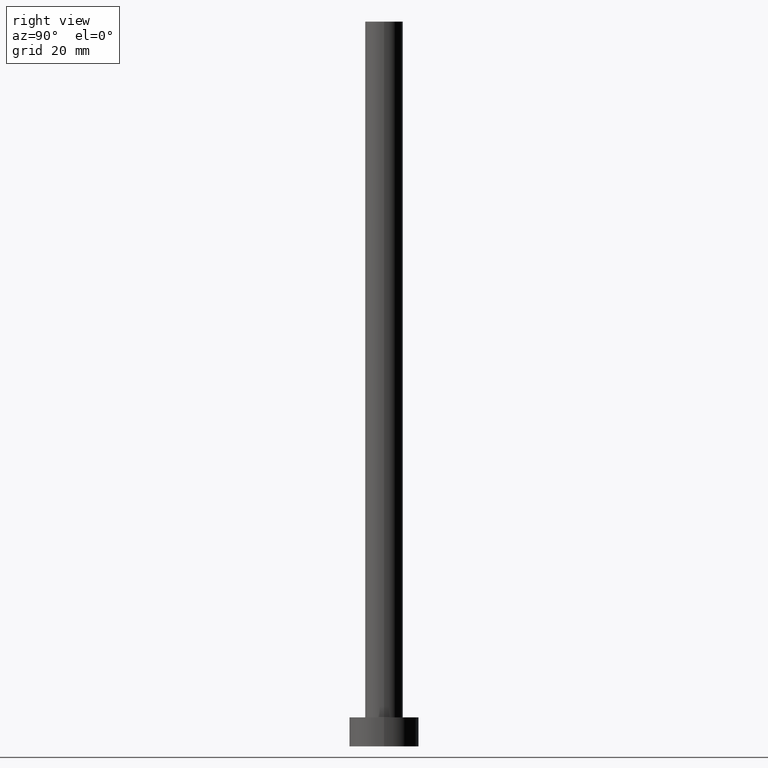
[diagram: clean part render]
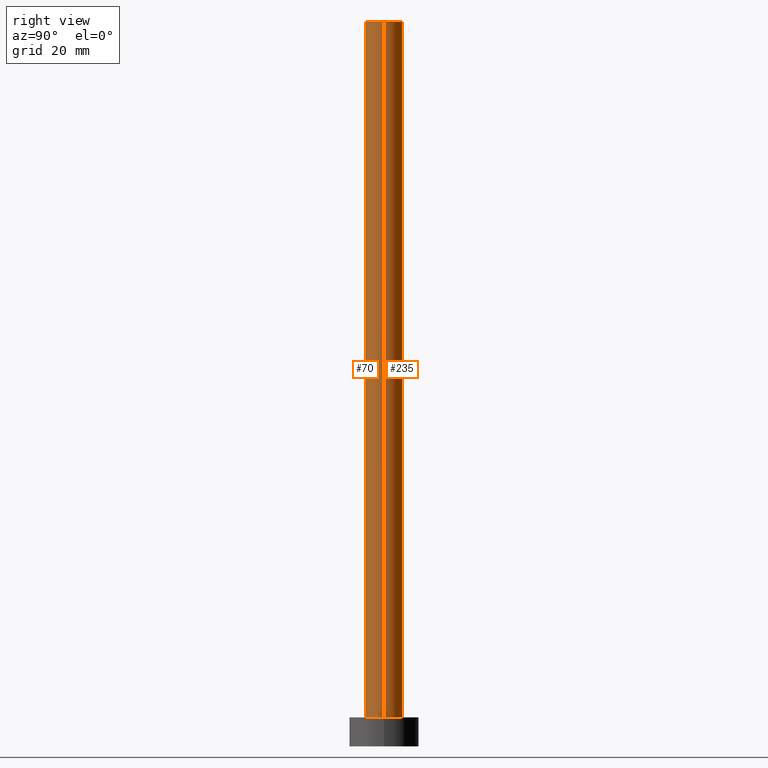
[diagram: same view with one multi-face feature highlighted, each face labeled with its STEP entity id]
A machine part, right view. The highlighted faces form ONE feature: a constant-radius fillet chain: 2 tangent blend faces with common blend radius 3.25 mm. The faces share edges in the B-rep.
Their STEP definitions:
[1] entity #70 (Cylinder):
#7 = VERTEX_POINT ( 'NONE', #46 ) ;
#9 = AXIS2_PLACEMENT_3D ( 'NONE', #105, #83, #219 ) ;
#27 = EDGE_LOOP ( 'NONE', ( #225, #113, #211, #193 ) ) ;
#30 = DIRECTION ( 'NONE',  ( -0.000000000000000000, -0.000000000000000000, -1.000000000000000000 ) ) ;
#31 = EDGE_CURVE ( 'NONE', #7, #53, #101, .T. ) ;
#44 = CYLINDRICAL_SURFACE ( 'NONE', #9, 3.250000000000000444 ) ;
#46 = CARTESIAN_POINT ( 'NONE',  ( -3.250000000000000444, 0.000000000000000000, 125.0000000000000000 ) ) ;
#49 = VERTEX_POINT ( 'NONE', #202 ) ;
#51 = DIRECTION ( 'NONE',  ( 1.000000000000000000, 0.000000000000000000, 0.000000000000000000 ) ) ;
#53 = VERTEX_POINT ( 'NONE', #127 ) ;
#55 = DIRECTION ( 'NONE',  ( 0.000000000000000000, 0.000000000000000000, 1.000000000000000000 ) ) ;
#70 = ADVANCED_FACE ( 'NONE', ( #181 ), #44, .T. ) ;
#73 = CIRCLE ( 'NONE', #138, 3.250000000000000444 ) ;
#75 = EDGE_CURVE ( 'NONE', #53, #90, #73, .T. ) ;
#79 = EDGE_CURVE ( 'NONE', #49, #90, #241, .T. ) ;
#83 = DIRECTION ( 'NONE',  ( -0.000000000000000000, -0.000000000000000000, -1.000000000000000000 ) ) ;
#85 = CIRCLE ( 'NONE', #93, 3.250000000000000444 ) ;
#90 = VERTEX_POINT ( 'NONE', #152 ) ;
#93 = AXIS2_PLACEMENT_3D ( 'NONE', #116, #55, #117 ) ;
#99 = CARTESIAN_POINT ( 'NONE',  ( 0.000000000000000000, 0.000000000000000000, 5.000000000000000000 ) ) ;
#101 = LINE ( 'NONE', #124, #183 ) ;
#105 = CARTESIAN_POINT ( 'NONE',  ( 0.000000000000000000, 0.000000000000000000, 125.0000000000000000 ) ) ;
#113 = ORIENTED_EDGE ( 'NONE', *, *, #203, .F. ) ;
#116 = CARTESIAN_POINT ( 'NONE',  ( 0.000000000000000000, 0.000000000000000000, 125.0000000000000000 ) ) ;
#117 = DIRECTION ( 'NONE',  ( 1.000000000000000000, 0.000000000000000000, 0.000000000000000000 ) ) ;
#124 = CARTESIAN_POINT ( 'NONE',  ( -3.250000000000000444, 0.000000000000000000, 125.0000000000000000 ) ) ;
#127 = CARTESIAN_POINT ( 'NONE',  ( -3.250000000000000444, 0.000000000000000000, 5.000000000000000000 ) ) ;
#138 = AXIS2_PLACEMENT_3D ( 'NONE', #99, #159, #51 ) ;
#139 = DIRECTION ( 'NONE',  ( -0.000000000000000000, -0.000000000000000000, -1.000000000000000000 ) ) ;
#152 = CARTESIAN_POINT ( 'NONE',  ( 3.250000000000000444, 3.980102097228898231E-16, 5.000000000000000000 ) ) ;
#159 = DIRECTION ( 'NONE',  ( 0.000000000000000000, 0.000000000000000000, 1.000000000000000000 ) ) ;
#164 = VECTOR ( 'NONE', #30, 1000.000000000000000 ) ;
#173 = CARTESIAN_POINT ( 'NONE',  ( 3.250000000000000444, 3.980102097228898231E-16, 125.0000000000000000 ) ) ;
#181 = FACE_OUTER_BOUND ( 'NONE', #27, .T. ) ;
#183 = VECTOR ( 'NONE', #139, 1000.000000000000000 ) ;
#193 = ORIENTED_EDGE ( 'NONE', *, *, #75, .T. ) ;
#202 = CARTESIAN_POINT ( 'NONE',  ( 3.250000000000000444, 3.980102097228898231E-16, 125.0000000000000000 ) ) ;
#203 = EDGE_CURVE ( 'NONE', #7, #49, #85, .T. ) ;
#211 = ORIENTED_EDGE ( 'NONE', *, *, #31, .T. ) ;
#219 = DIRECTION ( 'NONE',  ( -1.000000000000000000, 0.000000000000000000, 0.000000000000000000 ) ) ;
#225 = ORIENTED_EDGE ( 'NONE', *, *, #79, .F. ) ;
#241 = LINE ( 'NONE', #173, #164 ) ;
[2] entity #235 (Cylinder):
#7 = VERTEX_POINT ( 'NONE', #46 ) ;
#16 = CYLINDRICAL_SURFACE ( 'NONE', #196, 3.250000000000000444 ) ;
#30 = DIRECTION ( 'NONE',  ( -0.000000000000000000, -0.000000000000000000, -1.000000000000000000 ) ) ;
#31 = EDGE_CURVE ( 'NONE', #7, #53, #101, .T. ) ;
#33 = DIRECTION ( 'NONE',  ( -0.000000000000000000, -0.000000000000000000, -1.000000000000000000 ) ) ;
#38 = EDGE_CURVE ( 'NONE', #90, #53, #244, .T. ) ;
#40 = FACE_OUTER_BOUND ( 'NONE', #71, .T. ) ;
#46 = CARTESIAN_POINT ( 'NONE',  ( -3.250000000000000444, 0.000000000000000000, 125.0000000000000000 ) ) ;
#47 = DIRECTION ( 'NONE',  ( 1.000000000000000000, 0.000000000000000000, 0.000000000000000000 ) ) ;
#49 = VERTEX_POINT ( 'NONE', #202 ) ;
#53 = VERTEX_POINT ( 'NONE', #127 ) ;
#71 = EDGE_LOOP ( 'NONE', ( #151, #92, #89, #167 ) ) ;
#77 = AXIS2_PLACEMENT_3D ( 'NONE', #142, #143, #47 ) ;
#79 = EDGE_CURVE ( 'NONE', #49, #90, #241, .T. ) ;
#89 = ORIENTED_EDGE ( 'NONE', *, *, #38, .T. ) ;
#90 = VERTEX_POINT ( 'NONE', #152 ) ;
#92 = ORIENTED_EDGE ( 'NONE', *, *, #79, .T. ) ;
#101 = LINE ( 'NONE', #124, #183 ) ;
#124 = CARTESIAN_POINT ( 'NONE',  ( -3.250000000000000444, 0.000000000000000000, 125.0000000000000000 ) ) ;
#127 = CARTESIAN_POINT ( 'NONE',  ( -3.250000000000000444, 0.000000000000000000, 5.000000000000000000 ) ) ;
#134 = EDGE_CURVE ( 'NONE', #49, #7, #135, .T. ) ;
#135 = CIRCLE ( 'NONE', #230, 3.250000000000000444 ) ;
#139 = DIRECTION ( 'NONE',  ( -0.000000000000000000, -0.000000000000000000, -1.000000000000000000 ) ) ;
#142 = CARTESIAN_POINT ( 'NONE',  ( 0.000000000000000000, 0.000000000000000000, 5.000000000000000000 ) ) ;
#143 = DIRECTION ( 'NONE',  ( 0.000000000000000000, 0.000000000000000000, 1.000000000000000000 ) ) ;
#151 = ORIENTED_EDGE ( 'NONE', *, *, #134, .F. ) ;
#152 = CARTESIAN_POINT ( 'NONE',  ( 3.250000000000000444, 3.980102097228898231E-16, 5.000000000000000000 ) ) ;
#164 = VECTOR ( 'NONE', #30, 1000.000000000000000 ) ;
#167 = ORIENTED_EDGE ( 'NONE', *, *, #31, .F. ) ;
#173 = CARTESIAN_POINT ( 'NONE',  ( 3.250000000000000444, 3.980102097228898231E-16, 125.0000000000000000 ) ) ;
#176 = CARTESIAN_POINT ( 'NONE',  ( 0.000000000000000000, 0.000000000000000000, 125.0000000000000000 ) ) ;
#183 = VECTOR ( 'NONE', #139, 1000.000000000000000 ) ;
#191 = DIRECTION ( 'NONE',  ( -1.000000000000000000, 0.000000000000000000, 0.000000000000000000 ) ) ;
#196 = AXIS2_PLACEMENT_3D ( 'NONE', #176, #33, #191 ) ;
#202 = CARTESIAN_POINT ( 'NONE',  ( 3.250000000000000444, 3.980102097228898231E-16, 125.0000000000000000 ) ) ;
#217 = DIRECTION ( 'NONE',  ( 0.000000000000000000, 0.000000000000000000, 1.000000000000000000 ) ) ;
#230 = AXIS2_PLACEMENT_3D ( 'NONE', #249, #217, #252 ) ;
#235 = ADVANCED_FACE ( 'NONE', ( #40 ), #16, .T. ) ;
#241 = LINE ( 'NONE', #173, #164 ) ;
#244 = CIRCLE ( 'NONE', #77, 3.250000000000000444 ) ;
#249 = CARTESIAN_POINT ( 'NONE',  ( 0.000000000000000000, 0.000000000000000000, 125.0000000000000000 ) ) ;
#252 = DIRECTION ( 'NONE',  ( 1.000000000000000000, 0.000000000000000000, 0.000000000000000000 ) ) ;